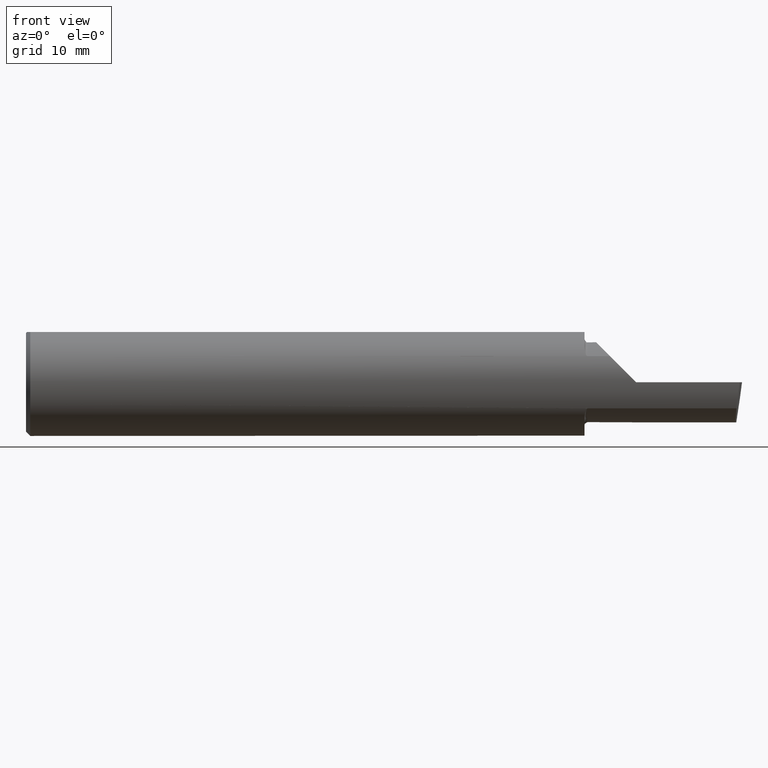
[diagram: clean part render]
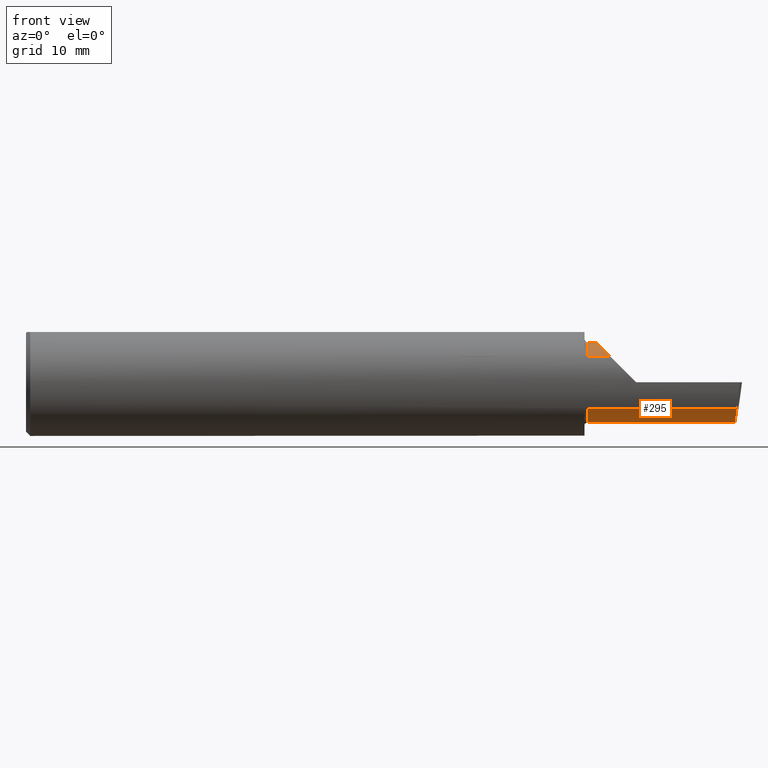
[diagram: same view with one face highlighted and labeled with its STEP entity id]
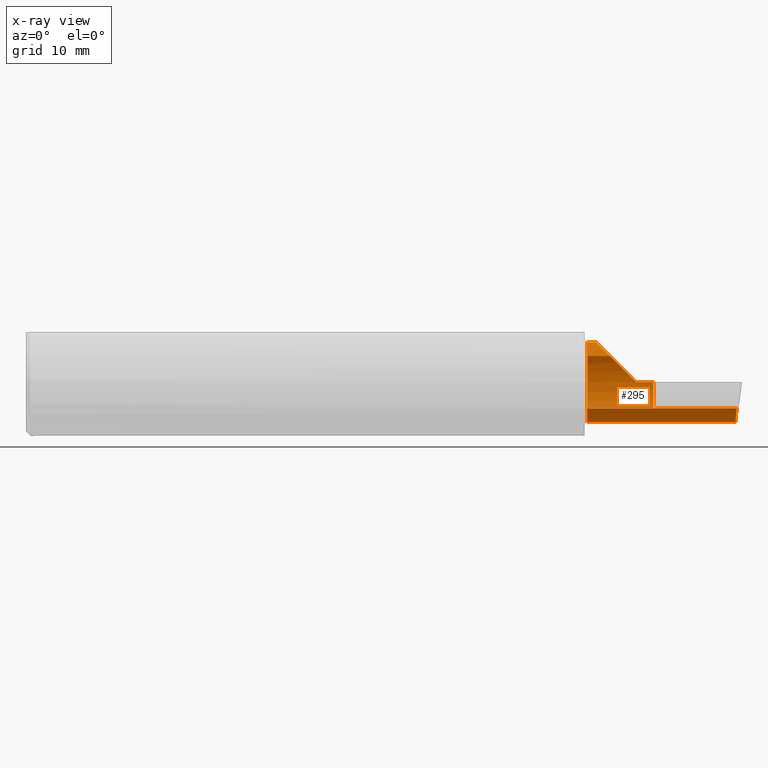
[diagram: x-ray of the same camera — body ghosted, the highlighted face saturated]
A machine part, front view. The second image highlights one B-rep face of the part: STEP entity #295.
The next image is the same camera in x-ray: the body ghosted, the highlighted face saturated — about 0% of this face is hidden behind the body in this view.
In plain terms, the highlighted cylindrical surface (partial cylindrical patch) has radius 3.5573 mm, axis along (-1, -0, -0).
Its self-contained STEP definition (entity closure, byte-faithful):
#1 = DIRECTION ( 'NONE',  ( -1.000000000000000000, 5.691349986800549142E-18, -0.0000000000000000000 ) ) ;
#2 = DIRECTION ( 'NONE',  ( 0.0000000000000000000, -1.000000000000000000, 2.664535259100375303E-15 ) ) ;
#6 = CARTESIAN_POINT ( 'NONE',  ( 2.500000000000000000, -0.05739999999999999963, -0.1400500000000000633 ) ) ;
#11 = CARTESIAN_POINT ( 'NONE',  ( 2.481080296960508580, -0.1635956445993030084, -0.09130436773856176469 ) ) ;
#12 = AXIS2_PLACEMENT_3D ( 'NONE', #264, #458, #307 ) ;
#17 = CARTESIAN_POINT ( 'NONE',  ( 1.975085956200449022, 0.08265000000000000124, 0.1549140437995494002 ) ) ;
#21 = EDGE_CURVE ( 'NONE', #303, #140, #380, .T. ) ;
#33 = VERTEX_POINT ( 'NONE', #111 ) ;
#35 = CARTESIAN_POINT ( 'NONE',  ( 2.189999999999999947, 0.08265000000000004288, 3.267291166268305196E-16 ) ) ;
#37 = CARTESIAN_POINT ( 'NONE',  ( 1.959999999999999964, -0.1635956445993024810, 0.09130436773856244470 ) ) ;
#38 = EDGE_CURVE ( 'NONE', #303, #509, #555, .T. ) ;
#43 = ORIENTED_EDGE ( 'NONE', *, *, #317, .T. ) ;
#44 = DIRECTION ( 'NONE',  ( 0.0000000000000000000, -1.000000000000000000, 0.0000000000000000000 ) ) ;
#60 = EDGE_CURVE ( 'NONE', #425, #140, #332, .T. ) ;
#76 = EDGE_LOOP ( 'NONE', ( #94, #467, #126, #43, #363, #153, #566, #253, #133, #430 ) ) ;
#85 = CARTESIAN_POINT ( 'NONE',  ( 2.189999999999999947, -0.05739999999999999963, 0.0000000000000000000 ) ) ;
#94 = ORIENTED_EDGE ( 'NONE', *, *, #429, .F. ) ;
#108 = CYLINDRICAL_SURFACE ( 'NONE', #173, 0.1400500000000000078 ) ;
#111 = CARTESIAN_POINT ( 'NONE',  ( 2.038695632261437130, -0.1635956445993029529, 0.09130436773856191734 ) ) ;
#123 = EDGE_CURVE ( 'NONE', #461, #325, #534, .T. ) ;
#124 = FACE_OUTER_BOUND ( 'NONE', #76, .T. ) ;
#126 = ORIENTED_EDGE ( 'NONE', *, *, #470, .F. ) ;
#132 = VERTEX_POINT ( 'NONE', #37 ) ;
#133 = ORIENTED_EDGE ( 'NONE', *, *, #38, .T. ) ;
#140 = VERTEX_POINT ( 'NONE', #208 ) ;
#152 = LINE ( 'NONE', #441, #511 ) ;
#153 = ORIENTED_EDGE ( 'NONE', *, *, #226, .T. ) ;
#173 = AXIS2_PLACEMENT_3D ( 'NONE', #389, #415, #445 ) ;
#174 = LINE ( 'NONE', #494, #190 ) ;
#186 = CARTESIAN_POINT ( 'NONE',  ( 1.959999999999999964, -0.05739999999999999963, 0.0000000000000000000 ) ) ;
#190 = VECTOR ( 'NONE', #508, 39.37007874015748143 ) ;
#204 = AXIS2_PLACEMENT_3D ( 'NONE', #590, #308, #503 ) ;
#207 = CARTESIAN_POINT ( 'NONE',  ( 2.481080296960508580, -0.1635956445993030084, -0.09130436773856176469 ) ) ;
#208 = CARTESIAN_POINT ( 'NONE',  ( 2.189999999999999947, 0.06026672169836863602, -0.07595093880103571948 ) ) ;
#224 = DIRECTION ( 'NONE',  ( -1.000000000000000000, -6.829619984160658046E-18, -0.0000000000000000000 ) ) ;
#225 = LINE ( 'NONE', #6, #459 ) ;
#226 = EDGE_CURVE ( 'NONE', #546, #425, #152, .T. ) ;
#249 = CARTESIAN_POINT ( 'NONE',  ( 2.129999999999999893, 0.08264999999999990410, 1.065442715258197396E-16 ) ) ;
#253 = ORIENTED_EDGE ( 'NONE', *, *, #21, .F. ) ;
#258 = CARTESIAN_POINT ( 'NONE',  ( 2.189999999999999947, -0.05739999999999999963, -0.1400500000000000633 ) ) ;
#259 = AXIS2_PLACEMENT_3D ( 'NONE', #186, #224, #44 ) ;
#264 = CARTESIAN_POINT ( 'NONE',  ( 2.189999999999999947, -0.05739999999999999963, 0.0000000000000000000 ) ) ;
#266 =( BOUNDED_CURVE ( )  B_SPLINE_CURVE ( 3, ( #11, #550, #536, #305 ),
 .UNSPECIFIED., .F., .T. ) 
 B_SPLINE_CURVE_WITH_KNOTS ( ( 4, 4 ),
 ( 5.632580117768155148, 6.493234751459282528 ),
 .UNSPECIFIED. ) 
 CURVE ( )  GEOMETRIC_REPRESENTATION_ITEM ( )  RATIONAL_B_SPLINE_CURVE ( ( 1.000000000000000000, 0.9392195014330944058, 0.9392195014330944058, 1.000000000000000000 ) ) 
 REPRESENTATION_ITEM ( '' )  );
#283 = VERTEX_POINT ( 'NONE', #383 ) ;
#295 = ADVANCED_FACE ( 'NONE', ( #124 ), #108, .T. ) ;
#303 = VERTEX_POINT ( 'NONE', #456 ) ;
#305 = CARTESIAN_POINT ( 'NONE',  ( 2.477873865042410806, -0.05739999999999999963, -0.1400500000000000633 ) ) ;
#307 = DIRECTION ( 'NONE',  ( 0.0000000000000000000, -1.000000000000000000, 0.0000000000000000000 ) ) ;
#308 = DIRECTION ( 'NONE',  ( -1.000000000000000000, -6.829619984160658046E-18, -0.0000000000000000000 ) ) ;
#317 = EDGE_CURVE ( 'NONE', #132, #33, #174, .T. ) ;
#325 = VERTEX_POINT ( 'NONE', #481 ) ;
#332 = CIRCLE ( 'NONE', #204, 0.1400500000000000356 ) ;
#339 = DIRECTION ( 'NONE',  ( -1.000000000000000000, -6.829619984160658046E-18, -0.0000000000000000000 ) ) ;
#351 = EDGE_CURVE ( 'NONE', #33, #546, #416, .T. ) ;
#357 = AXIS2_PLACEMENT_3D ( 'NONE', #85, #394, #2 ) ;
#361 = CIRCLE ( 'NONE', #259, 0.1400500000000000356 ) ;
#363 = ORIENTED_EDGE ( 'NONE', *, *, #351, .T. ) ;
#380 = CIRCLE ( 'NONE', #357, 0.1400500000000000356 ) ;
#383 = CARTESIAN_POINT ( 'NONE',  ( 2.477873865042410806, -0.05739999999999999963, -0.1400500000000000633 ) ) ;
#389 = CARTESIAN_POINT ( 'NONE',  ( 0.0000000000000000000, -0.05740000000000001351, 0.0000000000000000000 ) ) ;
#394 = DIRECTION ( 'NONE',  ( 1.000000000000000000, 6.829619984160658046E-18, 0.0000000000000000000 ) ) ;
#410 = CARTESIAN_POINT ( 'NONE',  ( 1.921229036482944075, -0.06260079402492431389, 0.2087709635170538203 ) ) ;
#415 = DIRECTION ( 'NONE',  ( -1.000000000000000000, -6.829619984160658046E-18, -0.0000000000000000000 ) ) ;
#416 =( BOUNDED_CURVE ( )  B_SPLINE_CURVE ( 3, ( #466, #410, #17, #249 ),
 .UNSPECIFIED., .F., .T. ) 
 B_SPLINE_CURVE_WITH_KNOTS ( ( 4, 4 ),
 ( 5.422530673488458852, 7.853981633974482790 ),
 .UNSPECIFIED. ) 
 CURVE ( )  GEOMETRIC_REPRESENTATION_ITEM ( )  RATIONAL_B_SPLINE_CURVE ( ( 1.000000000000000000, 0.5651045289226863666, 0.5651045289226863666, 1.000000000000000000 ) ) 
 REPRESENTATION_ITEM ( '' )  );
#425 = VERTEX_POINT ( 'NONE', #35 ) ;
#429 = EDGE_CURVE ( 'NONE', #461, #283, #266, .T. ) ;
#430 = ORIENTED_EDGE ( 'NONE', *, *, #592, .F. ) ;
#441 = CARTESIAN_POINT ( 'NONE',  ( -9.564882787816664242E-19, 0.08264999999999998737, 3.267291166268304703E-16 ) ) ;
#445 = DIRECTION ( 'NONE',  ( 6.829619984160658816E-18, -1.000000000000000000, 0.0000000000000000000 ) ) ;
#456 = CARTESIAN_POINT ( 'NONE',  ( 2.189999999999999947, 0.02208021110064889436, -0.1153121786430049839 ) ) ;
#458 = DIRECTION ( 'NONE',  ( -1.000000000000000000, -6.829619984160658046E-18, -0.0000000000000000000 ) ) ;
#459 = VECTOR ( 'NONE', #1, 39.37007874015748143 ) ;
#461 = VERTEX_POINT ( 'NONE', #207 ) ;
#466 = CARTESIAN_POINT ( 'NONE',  ( 2.038695632261437130, -0.1635956445993029529, 0.09130436773856191734 ) ) ;
#467 = ORIENTED_EDGE ( 'NONE', *, *, #123, .T. ) ;
#470 = EDGE_CURVE ( 'NONE', #132, #325, #361, .T. ) ;
#481 = CARTESIAN_POINT ( 'NONE',  ( 1.959999999999999964, -0.1635956445993023423, -0.09130436773856262511 ) ) ;
#494 = CARTESIAN_POINT ( 'NONE',  ( 2.075000000000000178, -0.1635956445993030084, 0.09130436773856176469 ) ) ;
#503 = DIRECTION ( 'NONE',  ( 0.0000000000000000000, -1.000000000000000000, 0.0000000000000000000 ) ) ;
#508 = DIRECTION ( 'NONE',  ( 1.000000000000000000, 6.829619984160658046E-18, 0.0000000000000000000 ) ) ;
#509 = VERTEX_POINT ( 'NONE', #258 ) ;
#511 = VECTOR ( 'NONE', #589, 39.37007874015748143 ) ;
#527 = CARTESIAN_POINT ( 'NONE',  ( 2.075000000000000178, -0.1635956445993030084, -0.09130436773856176469 ) ) ;
#534 = LINE ( 'NONE', #527, #563 ) ;
#536 = CARTESIAN_POINT ( 'NONE',  ( 2.476787929832031221, -0.09887019258091186980, -0.1400500000000000356 ) ) ;
#546 = VERTEX_POINT ( 'NONE', #583 ) ;
#550 = CARTESIAN_POINT ( 'NONE',  ( 2.477925907309857401, -0.1365595166907235813, -0.1227499502647108609 ) ) ;
#555 = CIRCLE ( 'NONE', #12, 0.1400500000000000356 ) ;
#563 = VECTOR ( 'NONE', #339, 39.37007874015748143 ) ;
#566 = ORIENTED_EDGE ( 'NONE', *, *, #60, .T. ) ;
#583 = CARTESIAN_POINT ( 'NONE',  ( 2.129999999999999893, 0.08264999999999990410, 1.065442715258197396E-16 ) ) ;
#589 = DIRECTION ( 'NONE',  ( 1.000000000000000000, 6.829619984160658046E-18, 0.0000000000000000000 ) ) ;
#590 = CARTESIAN_POINT ( 'NONE',  ( 2.189999999999999947, -0.05739999999999999963, 0.0000000000000000000 ) ) ;
#592 = EDGE_CURVE ( 'NONE', #283, #509, #225, .T. ) ;